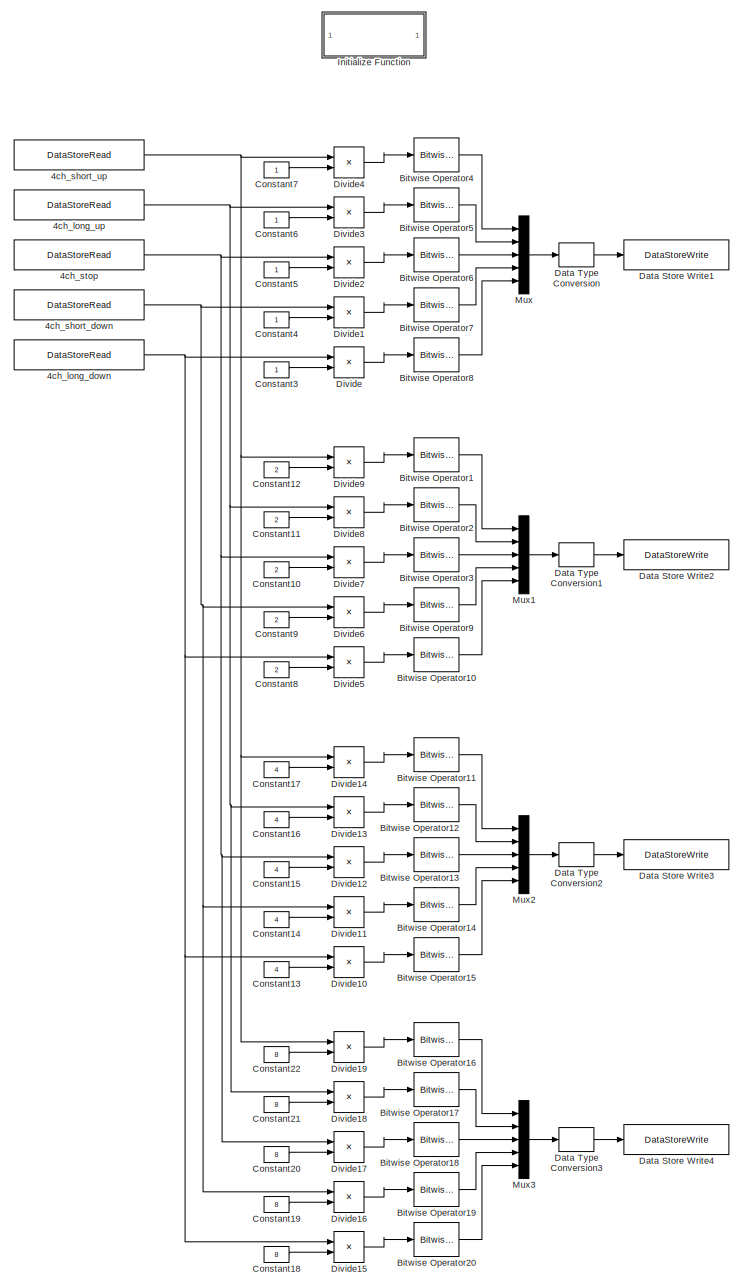
[diagram: root canvas - part 1/3, left side, full height]
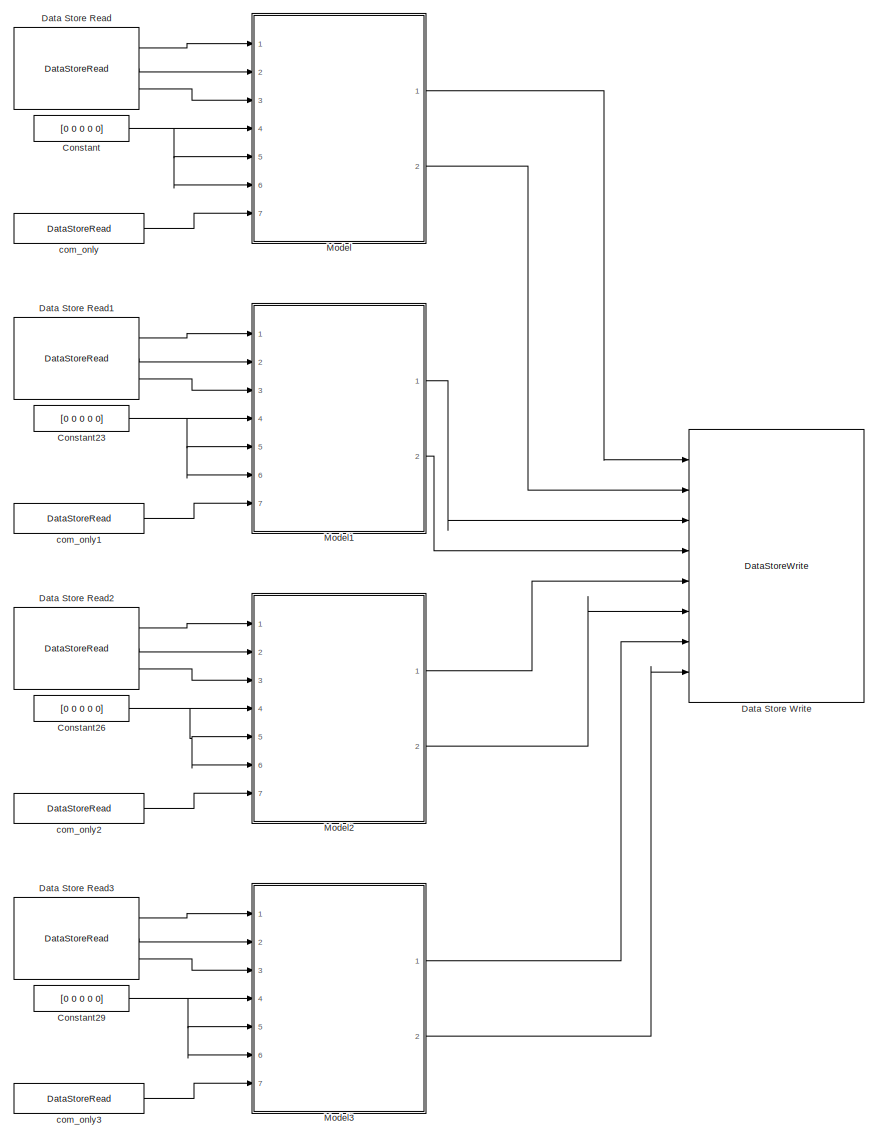
[diagram: root canvas - part 2/3, center side, full height]
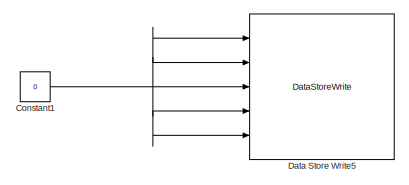
[diagram: root canvas - part 3/3, middle right region]
MODEL slx_d1b7563969e8
KIND model
BLOCK [DataStoreRead] 4ch_long_down
  DataStoreElements = sys_regs.holdings(13)
  DataStoreName = sys_regs
  IndexOptions = Index vector (dialog)
  Indices = 1
  OutputSizes = 1
  Ports = [0, 1]
BLOCK [DataStoreRead] 4ch_long_up
  DataStoreElements = sys_regs.holdings(1)
  DataStoreName = sys_regs
  IndexOptions = Index vector (dialog)
  Indices = 1
  OutputSizes = 1
  Ports = [0, 1]
BLOCK [DataStoreRead] 4ch_short_down
  DataStoreElements = sys_regs.holdings(25)
  DataStoreName = sys_regs
  IndexOptions = Index vector (dialog)
  Indices = 1
  OutputSizes = 1
  Ports = [0, 1]
BLOCK [DataStoreRead] 4ch_short_up
  DataStoreElements = sys_regs.holdings(19)
  DataStoreName = sys_regs
  IndexOptions = Index vector (dialog)
  Indices = 1
  OutputSizes = 1
  Ports = [0, 1]
BLOCK [DataStoreRead] 4ch_stop
  DataStoreElements = sys_regs.holdings(7)
  DataStoreName = sys_regs
  IndexOptions = Index vector (dialog)
  Indices = 1
  OutputSizes = 1
  Ports = [0, 1]
BLOCK [Reference] Bitwise Operator1  REF=simulink/Logic and Bit
Operations/Bitwise
Operator
  Ports = [1, 1]
  SourceBlock = simulink/Logic and Bit\nOperations/Bitwise\nOperator
  SourceProductBaseCode = SL
  SourceType = Bitwise Operator
BLOCK [Reference] Bitwise Operator10  REF=simulink/Logic and Bit
Operations/Bitwise
Operator
  Ports = [1, 1]
  SourceBlock = simulink/Logic and Bit\nOperations/Bitwise\nOperator
  SourceProductBaseCode = SL
  SourceType = Bitwise Operator
BLOCK [Reference] Bitwise Operator11  REF=simulink/Logic and Bit
Operations/Bitwise
Operator
  Ports = [1, 1]
  SourceBlock = simulink/Logic and Bit\nOperations/Bitwise\nOperator
  SourceProductBaseCode = SL
  SourceType = Bitwise Operator
BLOCK [Reference] Bitwise Operator12  REF=simulink/Logic and Bit
Operations/Bitwise
Operator
  Ports = [1, 1]
  SourceBlock = simulink/Logic and Bit\nOperations/Bitwise\nOperator
  SourceProductBaseCode = SL
  SourceType = Bitwise Operator
BLOCK [Reference] Bitwise Operator13  REF=simulink/Logic and Bit
Operations/Bitwise
Operator
  Ports = [1, 1]
  SourceBlock = simulink/Logic and Bit\nOperations/Bitwise\nOperator
  SourceProductBaseCode = SL
  SourceType = Bitwise Operator
BLOCK [Reference] Bitwise Operator14  REF=simulink/Logic and Bit
Operations/Bitwise
Operator
  Ports = [1, 1]
  SourceBlock = simulink/Logic and Bit\nOperations/Bitwise\nOperator
  SourceProductBaseCode = SL
  SourceType = Bitwise Operator
BLOCK [Reference] Bitwise Operator15  REF=simulink/Logic and Bit
Operations/Bitwise
Operator
  Ports = [1, 1]
  SourceBlock = simulink/Logic and Bit\nOperations/Bitwise\nOperator
  SourceProductBaseCode = SL
  SourceType = Bitwise Operator
BLOCK [Reference] Bitwise Operator16  REF=simulink/Logic and Bit
Operations/Bitwise
Operator
  Ports = [1, 1]
  SourceBlock = simulink/Logic and Bit\nOperations/Bitwise\nOperator
  SourceProductBaseCode = SL
  SourceType = Bitwise Operator
BLOCK [Reference] Bitwise Operator17  REF=simulink/Logic and Bit
Operations/Bitwise
Operator
  Ports = [1, 1]
  SourceBlock = simulink/Logic and Bit\nOperations/Bitwise\nOperator
  SourceProductBaseCode = SL
  SourceType = Bitwise Operator
BLOCK [Reference] Bitwise Operator18  REF=simulink/Logic and Bit
Operations/Bitwise
Operator
  Ports = [1, 1]
  SourceBlock = simulink/Logic and Bit\nOperations/Bitwise\nOperator
  SourceProductBaseCode = SL
  SourceType = Bitwise Operator
BLOCK [Reference] Bitwise Operator19  REF=simulink/Logic and Bit
Operations/Bitwise
Operator
  Ports = [1, 1]
  SourceBlock = simulink/Logic and Bit\nOperations/Bitwise\nOperator
  SourceProductBaseCode = SL
  SourceType = Bitwise Operator
BLOCK [Reference] Bitwise Operator2  REF=simulink/Logic and Bit
Operations/Bitwise
Operator
  Ports = [1, 1]
  SourceBlock = simulink/Logic and Bit\nOperations/Bitwise\nOperator
  SourceProductBaseCode = SL
  SourceType = Bitwise Operator
BLOCK [Reference] Bitwise Operator20  REF=simulink/Logic and Bit
Operations/Bitwise
Operator
  Ports = [1, 1]
  SourceBlock = simulink/Logic and Bit\nOperations/Bitwise\nOperator
  SourceProductBaseCode = SL
  SourceType = Bitwise Operator
BLOCK [Reference] Bitwise Operator3  REF=simulink/Logic and Bit
Operations/Bitwise
Operator
  Ports = [1, 1]
  SourceBlock = simulink/Logic and Bit\nOperations/Bitwise\nOperator
  SourceProductBaseCode = SL
  SourceType = Bitwise Operator
BLOCK [Reference] Bitwise Operator4  REF=simulink/Logic and Bit
Operations/Bitwise
Operator
  Ports = [1, 1]
  SourceBlock = simulink/Logic and Bit\nOperations/Bitwise\nOperator
  SourceProductBaseCode = SL
  SourceType = Bitwise Operator
BLOCK [Reference] Bitwise Operator5  REF=simulink/Logic and Bit
Operations/Bitwise
Operator
  Ports = [1, 1]
  SourceBlock = simulink/Logic and Bit\nOperations/Bitwise\nOperator
  SourceProductBaseCode = SL
  SourceType = Bitwise Operator
BLOCK [Reference] Bitwise Operator6  REF=simulink/Logic and Bit
Operations/Bitwise
Operator
  Ports = [1, 1]
  SourceBlock = simulink/Logic and Bit\nOperations/Bitwise\nOperator
  SourceProductBaseCode = SL
  SourceType = Bitwise Operator
BLOCK [Reference] Bitwise Operator7  REF=simulink/Logic and Bit
Operations/Bitwise
Operator
  Ports = [1, 1]
  SourceBlock = simulink/Logic and Bit\nOperations/Bitwise\nOperator
  SourceProductBaseCode = SL
  SourceType = Bitwise Operator
BLOCK [Reference] Bitwise Operator8  REF=simulink/Logic and Bit
Operations/Bitwise
Operator
  Ports = [1, 1]
  SourceBlock = simulink/Logic and Bit\nOperations/Bitwise\nOperator
  SourceProductBaseCode = SL
  SourceType = Bitwise Operator
BLOCK [Reference] Bitwise Operator9  REF=simulink/Logic and Bit
Operations/Bitwise
Operator
  Ports = [1, 1]
  SourceBlock = simulink/Logic and Bit\nOperations/Bitwise\nOperator
  SourceProductBaseCode = SL
  SourceType = Bitwise Operator
BLOCK [Constant] Constant
  OutDataTypeStr = int16
  Value = [0 0 0 0 0]
BLOCK [Constant] Constant1
  OutDataTypeStr = int16
  Value = 0
BLOCK [Constant] Constant10
  OutDataTypeStr = int16
  Value = 2
BLOCK [Constant] Constant11
  OutDataTypeStr = int16
  Value = 2
BLOCK [Constant] Constant12
  OutDataTypeStr = int16
  Value = 2
BLOCK [Constant] Constant13
  OutDataTypeStr = int16
  Value = 4
BLOCK [Constant] Constant14
  OutDataTypeStr = int16
  Value = 4
BLOCK [Constant] Constant15
  OutDataTypeStr = int16
  Value = 4
BLOCK [Constant] Constant16
  OutDataTypeStr = int16
  Value = 4
BLOCK [Constant] Constant17
  OutDataTypeStr = int16
  Value = 4
BLOCK [Constant] Constant18
  OutDataTypeStr = int16
  Value = 8
BLOCK [Constant] Constant19
  OutDataTypeStr = int16
  Value = 8
BLOCK [Constant] Constant20
  OutDataTypeStr = int16
  Value = 8
BLOCK [Constant] Constant21
  OutDataTypeStr = int16
  Value = 8
BLOCK [Constant] Constant22
  OutDataTypeStr = int16
  Value = 8
BLOCK [Constant] Constant23
  OutDataTypeStr = int16
  Value = [0 0 0 0 0]
BLOCK [Constant] Constant26
  OutDataTypeStr = int16
  Value = [0 0 0 0 0]
BLOCK [Constant] Constant29
  OutDataTypeStr = int16
  Value = [0 0 0 0 0]
BLOCK [Constant] Constant3
  OutDataTypeStr = int16
BLOCK [Constant] Constant4
  OutDataTypeStr = int16
BLOCK [Constant] Constant5
  OutDataTypeStr = int16
BLOCK [Constant] Constant6
  OutDataTypeStr = int16
BLOCK [Constant] Constant7
  OutDataTypeStr = int16
BLOCK [Constant] Constant8
  OutDataTypeStr = int16
  Value = 2
BLOCK [Constant] Constant9
  OutDataTypeStr = int16
  Value = 2
BLOCK [DataStoreRead] Data Store Read
  DataStoreElements = sys_regs.inputs(101:102)#sys_regs.inputs(109:110)#sys_regs.inputs(121:125)
  DataStoreName = sys_regs
  IndexOptions = Index vector (dialog)
  Indices = 1
  OutputSizes = 1
  Ports = [0, 3]
BLOCK [DataStoreRead] Data Store Read1
  DataStoreElements = sys_regs.inputs(103:104)#sys_regs.inputs(109:110)#sys_regs.inputs(126:130)
  DataStoreName = sys_regs
  IndexOptions = Index vector (dialog)
  Indices = 1
  OutputSizes = 1
  Ports = [0, 3]
BLOCK [DataStoreRead] Data Store Read2
  DataStoreElements = sys_regs.inputs(105:106)#sys_regs.inputs(109:110)#sys_regs.inputs(131:135)
  DataStoreName = sys_regs
  IndexOptions = Index vector (dialog)
  Indices = 1
  OutputSizes = 1
  Ports = [0, 3]
BLOCK [DataStoreRead] Data Store Read3
  DataStoreElements = sys_regs.inputs(107:108)#sys_regs.inputs(109:110)#sys_regs.inputs(136:140)
  DataStoreName = sys_regs
  IndexOptions = Index vector (dialog)
  Indices = 1
  OutputSizes = 1
  Ports = [0, 3]
BLOCK [DataStoreWrite] Data Store Write
  DataStoreElements = relay(1)#relay(2)#relay(3)#relay(4)#relay(5)#relay(6)#relay(7)#relay(8)
  DataStoreName = relay
  IndexOptions = Index vector (dialog)
  Indices = 1
  OutputSizes = 1
  Ports = [8]
BLOCK [DataStoreWrite] Data Store Write1
  DataStoreElements = sys_regs.inputs(121:125)
  DataStoreName = sys_regs
  IndexOptions = Index vector (dialog)
  Indices = 1
  OutputSizes = 1
  Ports = [1]
BLOCK [DataStoreWrite] Data Store Write2
  DataStoreElements = sys_regs.inputs(126:130)
  DataStoreName = sys_regs
  IndexOptions = Index vector (dialog)
  Indices = 1
  OutputSizes = 1
  Ports = [1]
BLOCK [DataStoreWrite] Data Store Write3
  DataStoreElements = sys_regs.inputs(131:135)
  DataStoreName = sys_regs
  IndexOptions = Index vector (dialog)
  Indices = 1
  OutputSizes = 1
  Ports = [1]
BLOCK [DataStoreWrite] Data Store Write4
  DataStoreElements = sys_regs.inputs(136:140)
  DataStoreName = sys_regs
  IndexOptions = Index vector (dialog)
  Indices = 1
  OutputSizes = 1
  Ports = [1]
BLOCK [DataStoreWrite] Data Store Write5
  DataStoreElements = sys_regs.holdings(19)#sys_regs.holdings(1)#sys_regs.holdings(7)#sys_regs.holdings(25)#sys_regs.holdings(13)
  DataStoreName = sys_regs
  IndexOptions = Index vector (dialog)
  Indices = 1
  OutputSizes = 1
  Ports = [5]
BLOCK [DataTypeConversion] Data Type Conversion
  OutDataTypeStr = int16
  RndMeth = Floor
  SaturateOnIntegerOverflow = off
BLOCK [DataTypeConversion] Data Type Conversion1
  OutDataTypeStr = int16
  RndMeth = Floor
  SaturateOnIntegerOverflow = off
BLOCK [DataTypeConversion] Data Type Conversion2
  OutDataTypeStr = int16
  RndMeth = Floor
  SaturateOnIntegerOverflow = off
BLOCK [DataTypeConversion] Data Type Conversion3
  OutDataTypeStr = int16
  RndMeth = Floor
  SaturateOnIntegerOverflow = off
BLOCK [Product] Divide
  Inputs = */
  OutDataTypeStr = int16
  Ports = [2, 1]
BLOCK [Product] Divide1
  Inputs = */
  OutDataTypeStr = int16
  Ports = [2, 1]
BLOCK [Product] Divide10
  Inputs = */
  OutDataTypeStr = int16
  Ports = [2, 1]
BLOCK [Product] Divide11
  Inputs = */
  OutDataTypeStr = int16
  Ports = [2, 1]
BLOCK [Product] Divide12
  Inputs = */
  OutDataTypeStr = int16
  Ports = [2, 1]
BLOCK [Product] Divide13
  Inputs = */
  OutDataTypeStr = int16
  Ports = [2, 1]
BLOCK [Product] Divide14
  Inputs = */
  OutDataTypeStr = int16
  Ports = [2, 1]
BLOCK [Product] Divide15
  Inputs = */
  OutDataTypeStr = int16
  Ports = [2, 1]
BLOCK [Product] Divide16
  Inputs = */
  OutDataTypeStr = int16
  Ports = [2, 1]
BLOCK [Product] Divide17
  Inputs = */
  OutDataTypeStr = int16
  Ports = [2, 1]
BLOCK [Product] Divide18
  Inputs = */
  OutDataTypeStr = int16
  Ports = [2, 1]
BLOCK [Product] Divide19
  Inputs = */
  OutDataTypeStr = int16
  Ports = [2, 1]
BLOCK [Product] Divide2
  Inputs = */
  OutDataTypeStr = int16
  Ports = [2, 1]
BLOCK [Product] Divide3
  Inputs = */
  OutDataTypeStr = int16
  Ports = [2, 1]
BLOCK [Product] Divide4
  Inputs = */
  OutDataTypeStr = int16
  Ports = [2, 1]
BLOCK [Product] Divide5
  Inputs = */
  OutDataTypeStr = int16
  Ports = [2, 1]
BLOCK [Product] Divide6
  Inputs = */
  OutDataTypeStr = int16
  Ports = [2, 1]
BLOCK [Product] Divide7
  Inputs = */
  OutDataTypeStr = int16
  Ports = [2, 1]
BLOCK [Product] Divide8
  Inputs = */
  OutDataTypeStr = int16
  Ports = [2, 1]
BLOCK [Product] Divide9
  Inputs = */
  OutDataTypeStr = int16
  Ports = [2, 1]
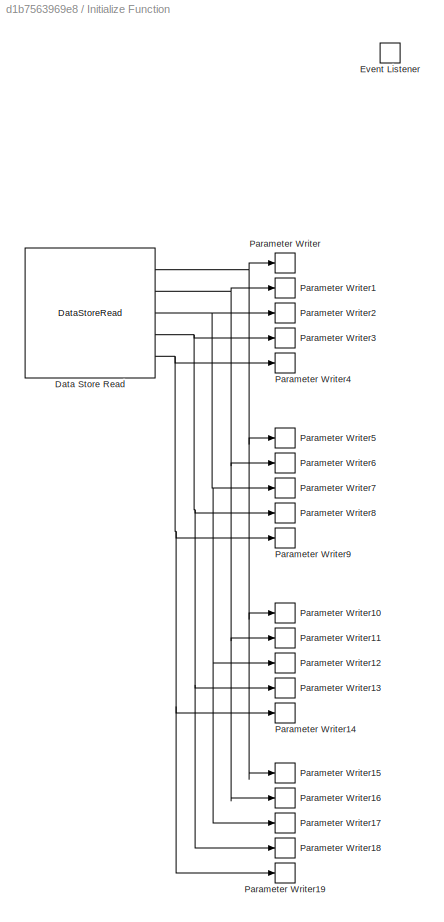
BLOCK [SubSystem] Initialize Function
  Ports = []
  RequestExecContextInheritance = off
  TreatAsAtomicUnit = on
BLOCK [DataStoreRead] Initialize Function/Data Store Read
  DataStoreElements = sys_regs.holdings(101)#sys_regs.holdings(102)#sys_regs.holdings(103)#sys_regs.holdings(37)#sys_regs.holdings(105)
  DataStoreName = sys_regs
  IndexOptions = Index vector (dialog)
  Indices = 1
  OutputSizes = 1
  Ports = [0, 5]
BLOCK [EventListener] Initialize Function/Event Listener
  DisableCoverage = on
  EventName = reset
BLOCK [ParameterWriter] Initialize Function/Parameter Writer
  ParameterInternalName = debounce_cnt
  ParameterName = debounce_cnt
  ParameterOwnerBlock = ../../Model
BLOCK [ParameterWriter] Initialize Function/Parameter Writer1
  ParameterInternalName = longpress_cnt
  ParameterName = longpress_cnt
  ParameterOwnerBlock = ../../Model
BLOCK [ParameterWriter] Initialize Function/Parameter Writer10
  ParameterInternalName = debounce_cnt
  ParameterName = debounce_cnt
  ParameterOwnerBlock = ../../Model2
BLOCK [ParameterWriter] Initialize Function/Parameter Writer11
  ParameterInternalName = longpress_cnt
  ParameterName = longpress_cnt
  ParameterOwnerBlock = ../../Model2
BLOCK [ParameterWriter] Initialize Function/Parameter Writer12
  ParameterInternalName = long_cnt
  ParameterName = long_cnt
  ParameterOwnerBlock = ../../Model2
BLOCK [ParameterWriter] Initialize Function/Parameter Writer13
  ParameterInternalName = short_cnt
  ParameterName = short_cnt
  ParameterOwnerBlock = ../../Model2
BLOCK [ParameterWriter] Initialize Function/Parameter Writer14
  ParameterInternalName = transfer_cnt
  ParameterName = transfer_cnt
  ParameterOwnerBlock = ../../Model2
BLOCK [ParameterWriter] Initialize Function/Parameter Writer15
  ParameterInternalName = debounce_cnt
  ParameterName = debounce_cnt
  ParameterOwnerBlock = ../../Model3
BLOCK [ParameterWriter] Initialize Function/Parameter Writer16
  ParameterInternalName = longpress_cnt
  ParameterName = longpress_cnt
  ParameterOwnerBlock = ../../Model3
BLOCK [ParameterWriter] Initialize Function/Parameter Writer17
  ParameterInternalName = long_cnt
  ParameterName = long_cnt
  ParameterOwnerBlock = ../../Model3
BLOCK [ParameterWriter] Initialize Function/Parameter Writer18
  ParameterInternalName = short_cnt
  ParameterName = short_cnt
  ParameterOwnerBlock = ../../Model3
BLOCK [ParameterWriter] Initialize Function/Parameter Writer19
  ParameterInternalName = transfer_cnt
  ParameterName = transfer_cnt
  ParameterOwnerBlock = ../../Model3
BLOCK [ParameterWriter] Initialize Function/Parameter Writer2
  ParameterInternalName = long_cnt
  ParameterName = long_cnt
  ParameterOwnerBlock = ../../Model
BLOCK [ParameterWriter] Initialize Function/Parameter Writer3
  ParameterInternalName = short_cnt
  ParameterName = short_cnt
  ParameterOwnerBlock = ../../Model
BLOCK [ParameterWriter] Initialize Function/Parameter Writer4
  ParameterInternalName = transfer_cnt
  ParameterName = transfer_cnt
  ParameterOwnerBlock = ../../Model
BLOCK [ParameterWriter] Initialize Function/Parameter Writer5
  ParameterInternalName = debounce_cnt
  ParameterName = debounce_cnt
  ParameterOwnerBlock = ../../Model1
BLOCK [ParameterWriter] Initialize Function/Parameter Writer6
  ParameterInternalName = longpress_cnt
  ParameterName = longpress_cnt
  ParameterOwnerBlock = ../../Model1
BLOCK [ParameterWriter] Initialize Function/Parameter Writer7
  ParameterInternalName = long_cnt
  ParameterName = long_cnt
  ParameterOwnerBlock = ../../Model1
BLOCK [ParameterWriter] Initialize Function/Parameter Writer8
  ParameterInternalName = short_cnt
  ParameterName = short_cnt
  ParameterOwnerBlock = ../../Model1
BLOCK [ParameterWriter] Initialize Function/Parameter Writer9
  ParameterInternalName = transfer_cnt
  ParameterName = transfer_cnt
  ParameterOwnerBlock = ../../Model1
BLOCK [ModelReference] Model
  ModelNameDialog = motor_channel.slx
  ModelReferenceVersion = 1.11
  Ports = [7, 2]
  UsingDefaultArgumentValue = 0,0,0,0,0
BLOCK [ModelReference] Model1
  ModelNameDialog = motor_channel.slx
  ModelReferenceVersion = 1.11
  Ports = [7, 2]
  UsingDefaultArgumentValue = 0,0,0,0,0
BLOCK [ModelReference] Model2
  ModelNameDialog = motor_channel.slx
  ModelReferenceVersion = 1.11
  Ports = [7, 2]
  UsingDefaultArgumentValue = 0,0,0,0,0
BLOCK [ModelReference] Model3
  ModelNameDialog = motor_channel.slx
  ModelReferenceVersion = 1.11
  Ports = [7, 2]
  UsingDefaultArgumentValue = 0,0,0,0,0
BLOCK [Mux] Mux
  DisplayOption = bar
  Inputs = 5
  Ports = [5, 1]
BLOCK [Mux] Mux1
  DisplayOption = bar
  Inputs = 5
  Ports = [5, 1]
BLOCK [Mux] Mux2
  DisplayOption = bar
  Inputs = 5
  Ports = [5, 1]
BLOCK [Mux] Mux3
  DisplayOption = bar
  Inputs = 5
  Ports = [5, 1]
BLOCK [DataStoreRead] com_only
  DataStoreElements = sys_regs.holdings(38)
  DataStoreName = sys_regs
  IndexOptions = Index vector (dialog)
  Indices = 1
  OutputSizes = 1
  Ports = [0, 1]
BLOCK [DataStoreRead] com_only1
  DataStoreElements = sys_regs.holdings(38)
  DataStoreName = sys_regs
  IndexOptions = Index vector (dialog)
  Indices = 1
  OutputSizes = 1
  Ports = [0, 1]
BLOCK [DataStoreRead] com_only2
  DataStoreElements = sys_regs.holdings(38)
  DataStoreName = sys_regs
  IndexOptions = Index vector (dialog)
  Indices = 1
  OutputSizes = 1
  Ports = [0, 1]
BLOCK [DataStoreRead] com_only3
  DataStoreElements = sys_regs.holdings(38)
  DataStoreName = sys_regs
  IndexOptions = Index vector (dialog)
  Indices = 1
  OutputSizes = 1
  Ports = [0, 1]
NET 4ch_long_down:1 -> Divide10:1, Divide15:1, Divide5:1, Divide:1
NET 4ch_long_up:1 -> Divide13:1, Divide18:1, Divide3:1, Divide8:1
NET 4ch_short_down:1 -> Divide11:1, Divide16:1, Divide1:1, Divide6:1
NET 4ch_short_up:1 -> Divide14:1, Divide19:1, Divide4:1, Divide9:1
NET 4ch_stop:1 -> Divide12:1, Divide17:1, Divide2:1, Divide7:1
LINE Bitwise Operator10:1 -> Mux1:5
LINE Bitwise Operator11:1 -> Mux2:1
LINE Bitwise Operator12:1 -> Mux2:2
LINE Bitwise Operator13:1 -> Mux2:3
LINE Bitwise Operator14:1 -> Mux2:4
LINE Bitwise Operator15:1 -> Mux2:5
LINE Bitwise Operator16:1 -> Mux3:1
LINE Bitwise Operator17:1 -> Mux3:2
LINE Bitwise Operator18:1 -> Mux3:3
LINE Bitwise Operator19:1 -> Mux3:4
LINE Bitwise Operator1:1 -> Mux1:1
LINE Bitwise Operator20:1 -> Mux3:5
LINE Bitwise Operator2:1 -> Mux1:2
LINE Bitwise Operator3:1 -> Mux1:3
LINE Bitwise Operator4:1 -> Mux:1
LINE Bitwise Operator5:1 -> Mux:2
LINE Bitwise Operator6:1 -> Mux:3
LINE Bitwise Operator7:1 -> Mux:4
LINE Bitwise Operator8:1 -> Mux:5
LINE Bitwise Operator9:1 -> Mux1:4
LINE Constant10:1 -> Divide7:2
LINE Constant11:1 -> Divide8:2
LINE Constant12:1 -> Divide9:2
LINE Constant13:1 -> Divide10:2
LINE Constant14:1 -> Divide11:2
LINE Constant15:1 -> Divide12:2
LINE Constant16:1 -> Divide13:2
LINE Constant17:1 -> Divide14:2
LINE Constant18:1 -> Divide15:2
LINE Constant19:1 -> Divide16:2
NET Constant1:1 -> Data Store Write5:1, Data Store Write5:2, Data Store Write5:3, Data Store Write5:4, Data Store Write5:5
LINE Constant20:1 -> Divide17:2
LINE Constant21:1 -> Divide18:2
LINE Constant22:1 -> Divide19:2
NET Constant23:1 -> Model1:4, Model1:5, Model1:6
NET Constant26:1 -> Model2:4, Model2:5, Model2:6
NET Constant29:1 -> Model3:4, Model3:5, Model3:6
LINE Constant3:1 -> Divide:2
LINE Constant4:1 -> Divide1:2
LINE Constant5:1 -> Divide2:2
LINE Constant6:1 -> Divide3:2
LINE Constant7:1 -> Divide4:2
LINE Constant8:1 -> Divide5:2
LINE Constant9:1 -> Divide6:2
NET Constant:1 -> Model:4, Model:5, Model:6
LINE Data Store Read1:1 -> Model1:1
LINE Data Store Read1:2 -> Model1:2
LINE Data Store Read1:3 -> Model1:3
LINE Data Store Read2:1 -> Model2:1
LINE Data Store Read2:2 -> Model2:2
LINE Data Store Read2:3 -> Model2:3
LINE Data Store Read3:1 -> Model3:1
LINE Data Store Read3:2 -> Model3:2
LINE Data Store Read3:3 -> Model3:3
LINE Data Store Read:1 -> Model:1
LINE Data Store Read:2 -> Model:2
LINE Data Store Read:3 -> Model:3
LINE Data Type Conversion1:1 -> Data Store Write2:1
LINE Data Type Conversion2:1 -> Data Store Write3:1
LINE Data Type Conversion3:1 -> Data Store Write4:1
LINE Data Type Conversion:1 -> Data Store Write1:1
LINE Divide10:1 -> Bitwise Operator15:1
LINE Divide11:1 -> Bitwise Operator14:1
LINE Divide12:1 -> Bitwise Operator13:1
LINE Divide13:1 -> Bitwise Operator12:1
LINE Divide14:1 -> Bitwise Operator11:1
LINE Divide15:1 -> Bitwise Operator20:1
LINE Divide16:1 -> Bitwise Operator19:1
LINE Divide17:1 -> Bitwise Operator18:1
LINE Divide18:1 -> Bitwise Operator17:1
LINE Divide19:1 -> Bitwise Operator16:1
LINE Divide1:1 -> Bitwise Operator7:1
LINE Divide2:1 -> Bitwise Operator6:1
LINE Divide3:1 -> Bitwise Operator5:1
LINE Divide4:1 -> Bitwise Operator4:1
LINE Divide5:1 -> Bitwise Operator10:1
LINE Divide6:1 -> Bitwise Operator9:1
LINE Divide7:1 -> Bitwise Operator3:1
LINE Divide8:1 -> Bitwise Operator2:1
LINE Divide9:1 -> Bitwise Operator1:1
LINE Divide:1 -> Bitwise Operator8:1
NET Initialize Function/Data Store Read:1 -> Initialize Function/Parameter Writer10:1, Initialize Function/Parameter Writer15:1, Initialize Function/Parameter Writer5:1, Initialize Function/Parameter Writer:1
NET Initialize Function/Data Store Read:2 -> Initialize Function/Parameter Writer11:1, Initialize Function/Parameter Writer16:1, Initialize Function/Parameter Writer1:1, Initialize Function/Parameter Writer6:1
NET Initialize Function/Data Store Read:3 -> Initialize Function/Parameter Writer12:1, Initialize Function/Parameter Writer17:1, Initialize Function/Parameter Writer2:1, Initialize Function/Parameter Writer7:1
NET Initialize Function/Data Store Read:4 -> Initialize Function/Parameter Writer13:1, Initialize Function/Parameter Writer18:1, Initialize Function/Parameter Writer3:1, Initialize Function/Parameter Writer8:1
NET Initialize Function/Data Store Read:5 -> Initialize Function/Parameter Writer14:1, Initialize Function/Parameter Writer19:1, Initialize Function/Parameter Writer4:1, Initialize Function/Parameter Writer9:1
LINE Model1:1 -> Data Store Write:3
LINE Model1:2 -> Data Store Write:4
LINE Model2:1 -> Data Store Write:5
LINE Model2:2 -> Data Store Write:6
LINE Model3:1 -> Data Store Write:7
LINE Model3:2 -> Data Store Write:8
LINE Model:1 -> Data Store Write:1
LINE Model:2 -> Data Store Write:2
LINE Mux1:1 -> Data Type Conversion1:1
LINE Mux2:1 -> Data Type Conversion2:1
LINE Mux3:1 -> Data Type Conversion3:1
LINE Mux:1 -> Data Type Conversion:1
LINE com_only1:1 -> Model1:7
LINE com_only2:1 -> Model2:7
LINE com_only3:1 -> Model3:7
LINE com_only:1 -> Model:7
note: NET lines group one-source signal fan-out (src -> all destinations, sorted); 1:1 wires keep LINE
